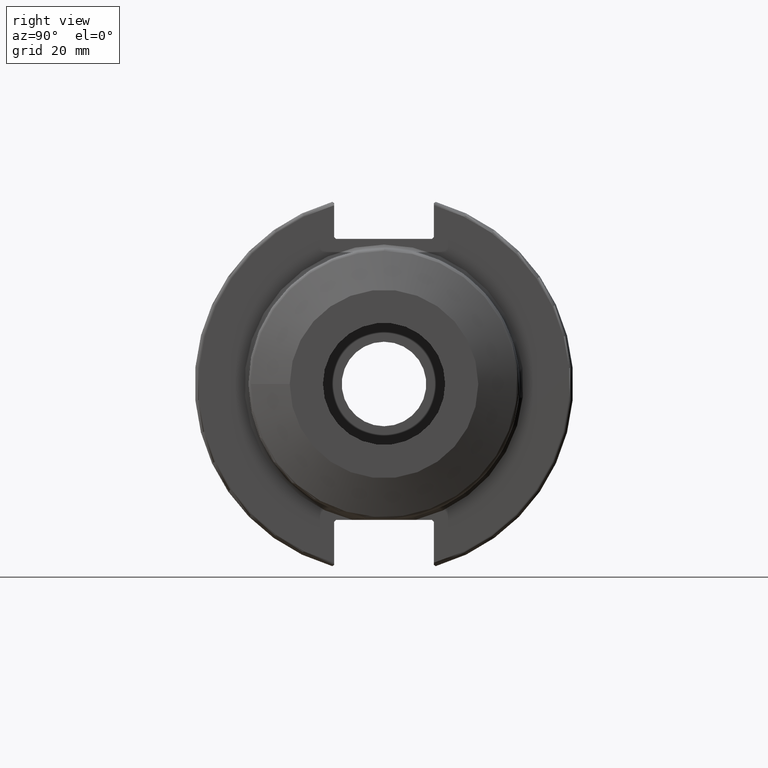
[diagram: clean part render]
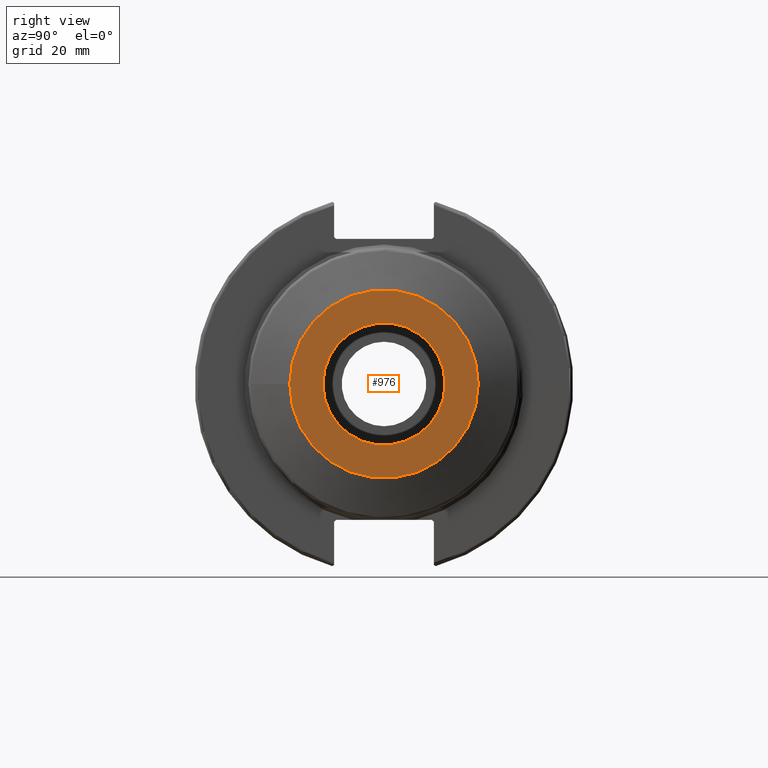
[diagram: same view with one face highlighted and labeled with its STEP entity id]
A machine part, right view. The second image highlights one B-rep face of the part: STEP entity #976.
In plain terms, the highlighted planar face has unit normal (1, 0, 0).
Its self-contained STEP definition (entity closure, byte-faithful):
#32=FACE_BOUND('',#305,.T.);
#38=PLANE('',#1069);
#246=FACE_OUTER_BOUND('',#304,.T.);
#304=EDGE_LOOP('',(#690));
#305=EDGE_LOOP('',(#691));
#367=CIRCLE('',#1060,24.5);
#370=CIRCLE('',#1065,15.875);
#415=VERTEX_POINT('',#1456);
#419=VERTEX_POINT('',#1482);
#517=EDGE_CURVE('',#415,#415,#367,.T.);
#523=EDGE_CURVE('',#419,#419,#370,.T.);
#690=ORIENTED_EDGE('',*,*,#517,.T.);
#691=ORIENTED_EDGE('',*,*,#523,.T.);
#976=ADVANCED_FACE('',(#246,#32),#38,.T.);
#1060=AXIS2_PLACEMENT_3D('',#1457,#1179,#1180);
#1065=AXIS2_PLACEMENT_3D('',#1483,#1190,#1191);
#1069=AXIS2_PLACEMENT_3D('',#1490,#1199,#1200);
#1179=DIRECTION('center_axis',(1.,0.,0.));
#1180=DIRECTION('ref_axis',(0.,0.,-1.));
#1190=DIRECTION('center_axis',(-1.,0.,0.));
#1191=DIRECTION('ref_axis',(0.,1.,0.));
#1199=DIRECTION('center_axis',(1.,0.,0.));
#1200=DIRECTION('ref_axis',(0.,0.,-1.));
#1456=CARTESIAN_POINT('',(30.9,-24.5,-3.00038465791102E-15));
#1457=CARTESIAN_POINT('Origin',(30.9,0.,0.));
#1482=CARTESIAN_POINT('',(30.9,-15.875,1.94412679364642E-15));
#1483=CARTESIAN_POINT('Origin',(30.9,0.,0.));
#1490=CARTESIAN_POINT('Origin',(30.9,-3.88036093967107E-15,0.));